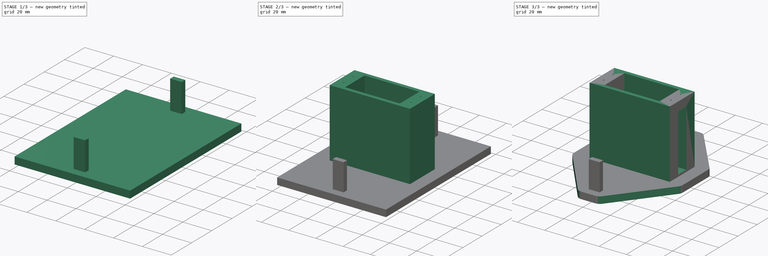
[diagram: build sequence overview — one tinted view per stage of 3, left to right]
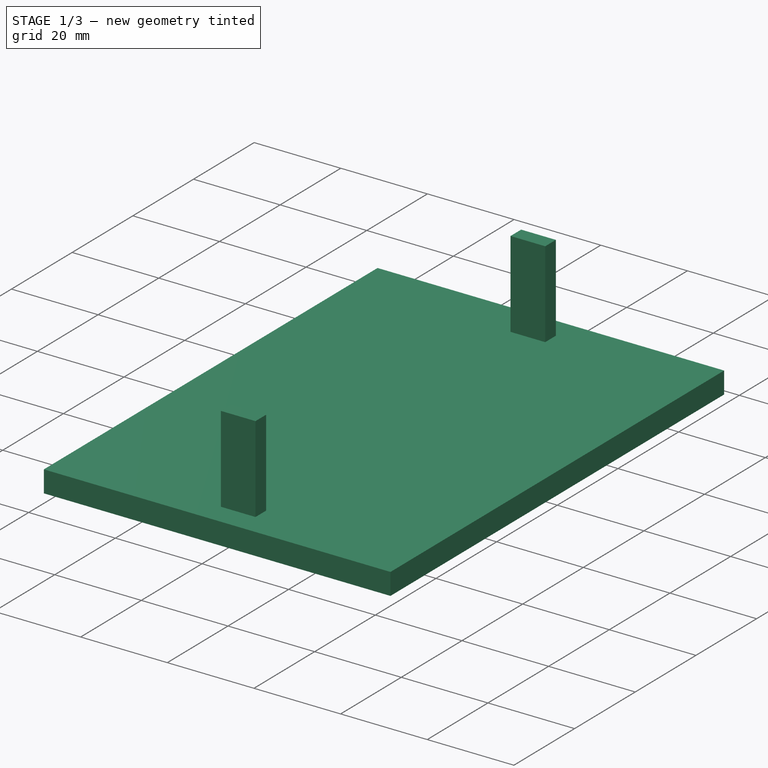
[diagram: stage 1 of 3 — iso view after this stage's code; geometry added in this stage tinted green]
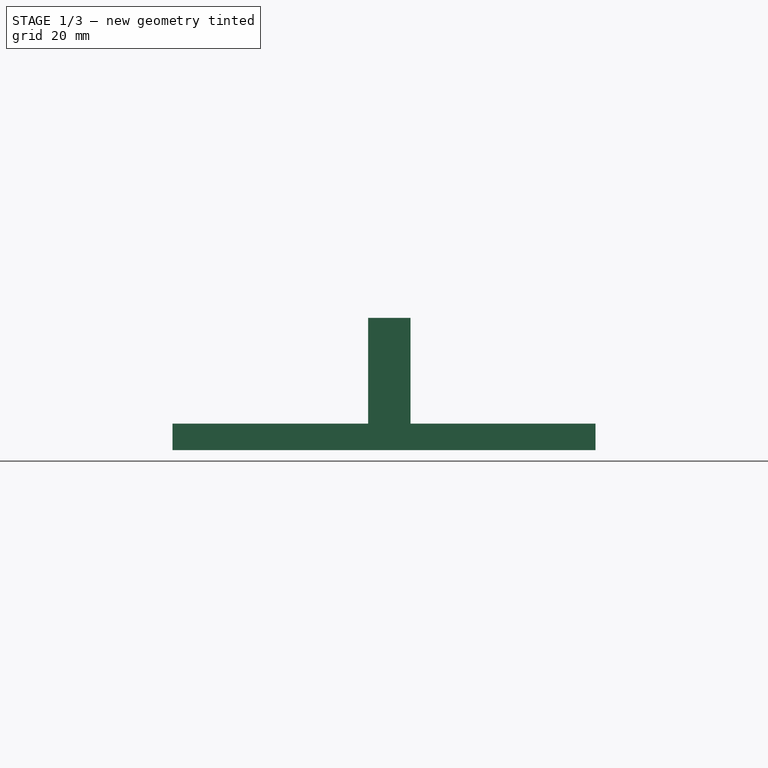
[diagram: stage 1 of 3 — front view after this stage's code; geometry added in this stage tinted green]
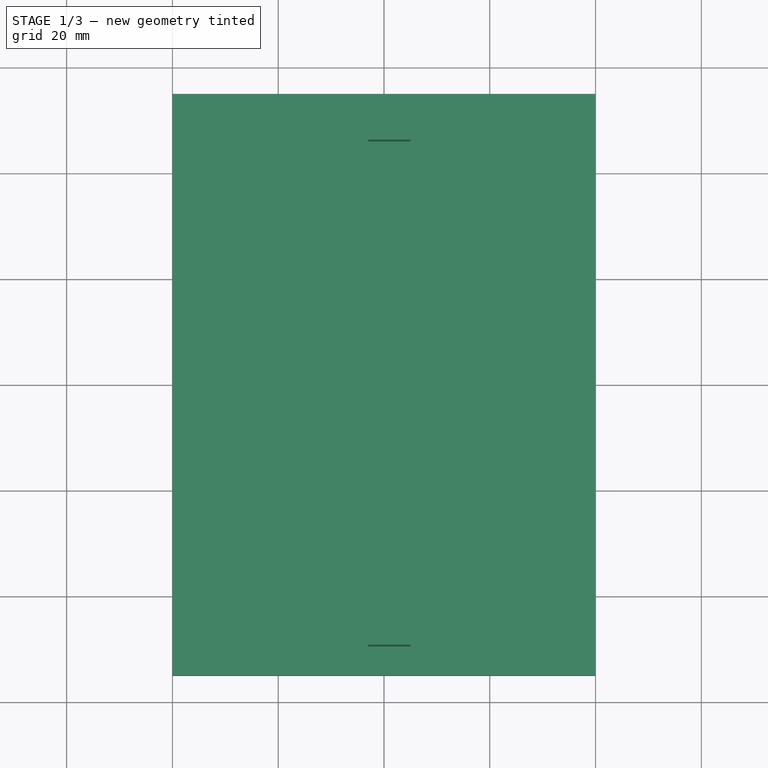
[diagram: stage 1 of 3 — top view after this stage's code; geometry added in this stage tinted green]
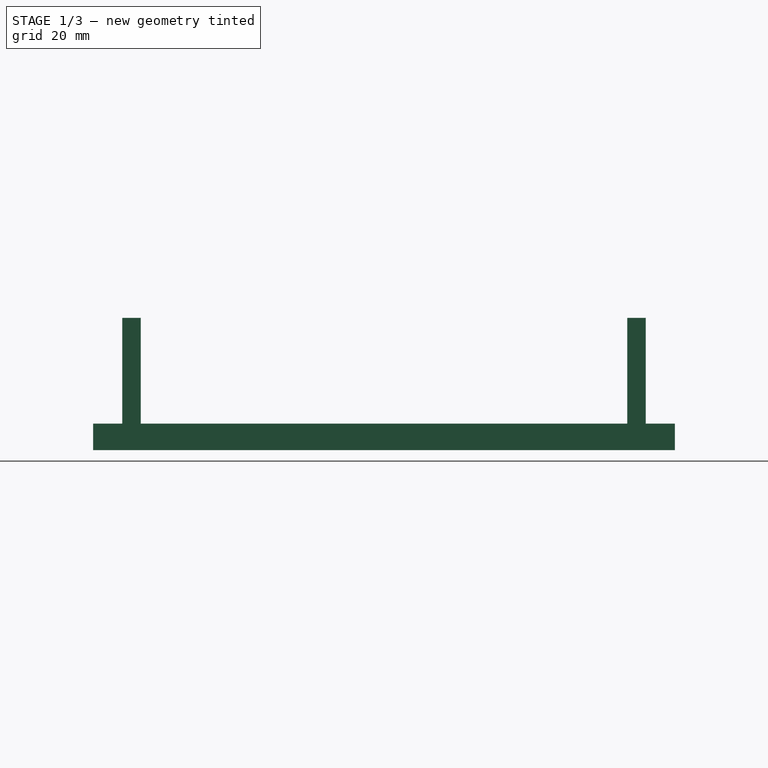
[diagram: stage 1 of 3 — right view after this stage's code; geometry added in this stage tinted green]
FCSTD DOCUMENT  (FreeCAD 0.21R33771 (Git))
Label: support_servomoteur
License: All rights reserved
LicenseURL: https://en.wikipedia.org/wiki/All_rights_reserved
objects: Sketcher::SketchObject×6, PartDesign::Pad×3, PartDesign::Pocket×3, PartDesign::Fillet×1, PartDesign::Body×1
note: 21 computed .brp shape members not serialized (recipe doc carries the construction recipe); baked Part::Feature solids carry a one-line shape summary decoded from their .brp

FEATURE [Sketcher::SketchObject] Sketch
  FullyConstrained = true
  MapMode = 5
  Support = -> [XY_Plane]
  sketch-geometry (4):
    g0: LineSegment StartX=-40 StartY=-55 StartZ=0 EndX=40 EndY=-55 EndZ=0
    g1: LineSegment StartX=40 StartY=-55 StartZ=0 EndX=40 EndY=55 EndZ=0
    g2: LineSegment StartX=40 StartY=55 StartZ=0 EndX=-40 EndY=55 EndZ=0
    g3: LineSegment StartX=-40 StartY=55 StartZ=0 EndX=-40 EndY=-55 EndZ=0
  constraints (11):
    c: Coincident(g0,g1)
    c: Coincident(g1,g2)
    c: Coincident(g2,g3)
    c: Coincident(g3,g0)
    c: Horizontal(g0)
    c: Horizontal(g2)
    c: Vertical(g1)
    c: Vertical(g3)
    c: DistanceX(g2,g2) = 80
    c: DistanceY(g1,g1) = 110
    c: Symmetric(g2,g0,g-1)
FEATURE [PartDesign::Pad] Pad
  Direction = (0,0,1)
  Length = 5
  Length2 = 10
  Profile = -> Sketch
  ReferenceAxis = -> Sketch [N_Axis]
  Type = 0
FEATURE [Sketcher::SketchObject] Sketch001
  ExternalGeometry = -> [Pad]
  FullyConstrained = true
  MapMode = 5
  Placement = pos=(0,0,5) rot=(0,0,1;0rad)
  Support = -> [Pad]
  sketch-geometry (8):
    g0: LineSegment StartX=-3 StartY=49.5 StartZ=0 EndX=5 EndY=49.5 EndZ=0
    g1: LineSegment StartX=5 StartY=49.5 StartZ=0 EndX=5 EndY=46 EndZ=0
    g2: LineSegment StartX=5 StartY=46 StartZ=0 EndX=-3 EndY=46 EndZ=0
    g3: LineSegment StartX=-3 StartY=46 StartZ=0 EndX=-3 EndY=49.5 EndZ=0
    g4: LineSegment StartX=-3 StartY=-46 StartZ=0 EndX=5 EndY=-46 EndZ=0
    g5: LineSegment StartX=5 StartY=-46 StartZ=0 EndX=5 EndY=-49.5 EndZ=0
    g6: LineSegment StartX=5 StartY=-49.5 StartZ=0 EndX=-3 EndY=-49.5 EndZ=0
    g7: LineSegment StartX=-3 StartY=-49.5 StartZ=0 EndX=-3 EndY=-46 EndZ=0
  constraints (23):
    c: Coincident(g0,g1)
    c: Coincident(g1,g2)
    c: Coincident(g2,g3)
    c: Coincident(g3,g0)
    c: Horizontal(g0)
    c: Horizontal(g2)
    c: Vertical(g1)
    c: Vertical(g3)
    c: Coincident(g4,g5)
    c: Coincident(g5,g6)
    c: Coincident(g6,g7)
    c: Coincident(g7,g4)
    c: Horizontal(g4)
    c: Horizontal(g6)
    c: Vertical(g5)
    c: Vertical(g7)
    c: Equal(g1,g5)
    c: Equal(g0,g4)
    c: Symmetric(g2,g4,g-1)
    c: DistanceX(g0,g-4) = 35
    c: DistanceX(g0,g0) = 8
    c: DistanceY(g3,g3) = 3.5
    c: DistanceY(g4,g1) = 92
FEATURE [PartDesign::Pad] Pad001
  BaseFeature = -> Pad
  Direction = (0,0,1)
  Length = 20
  Length2 = 10
  Profile = -> Sketch001
  ReferenceAxis = -> Sketch001 [N_Axis]
  Type = 0
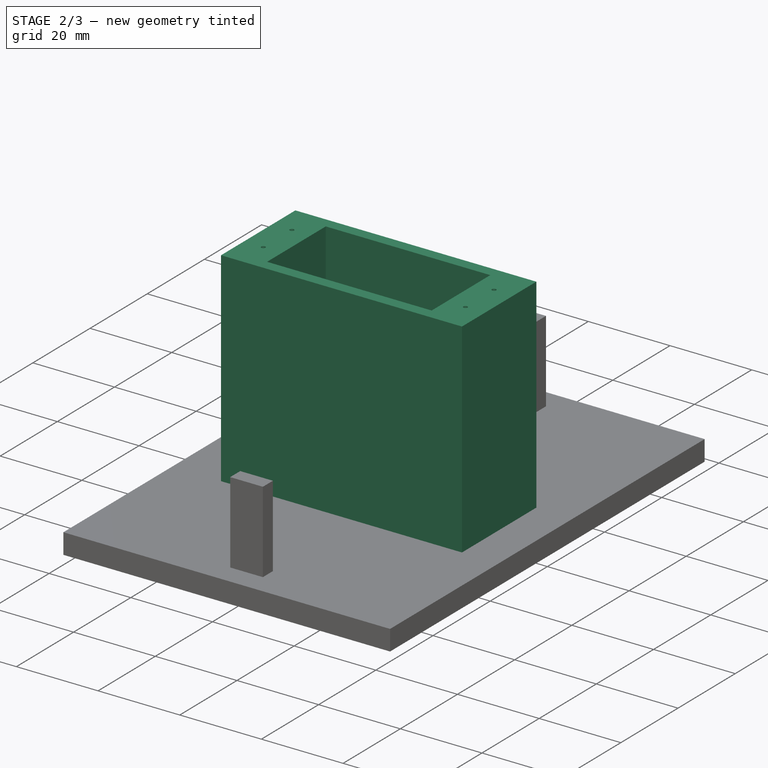
[diagram: stage 2 of 3 — iso view after this stage's code; geometry added in this stage tinted green]
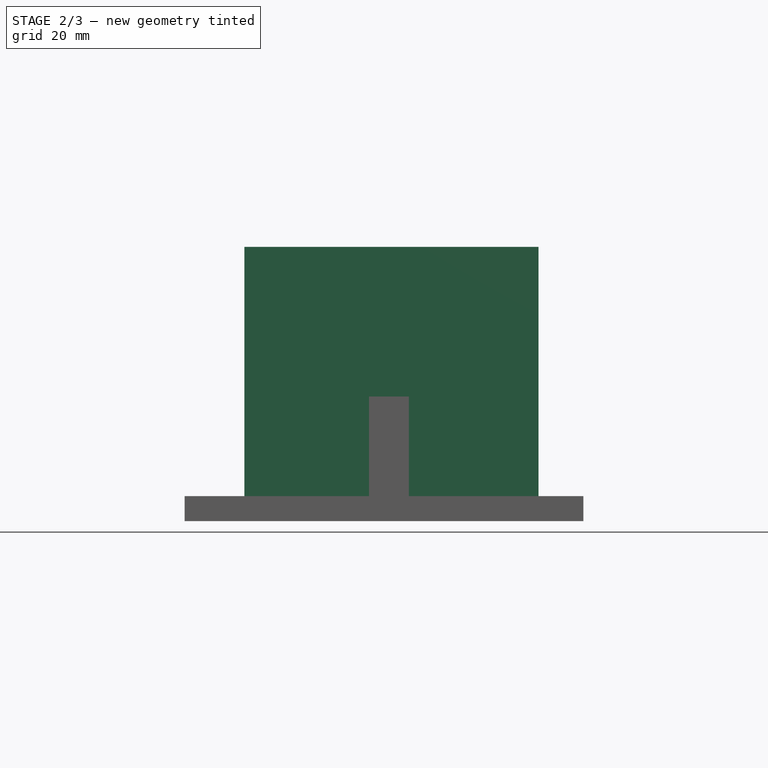
[diagram: stage 2 of 3 — front view after this stage's code; geometry added in this stage tinted green]
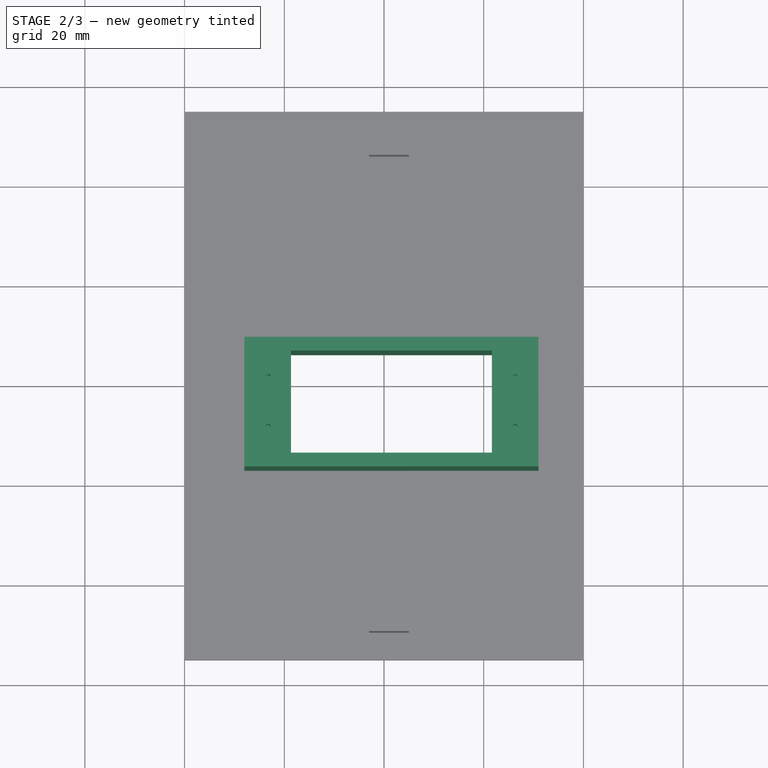
[diagram: stage 2 of 3 — top view after this stage's code; geometry added in this stage tinted green]
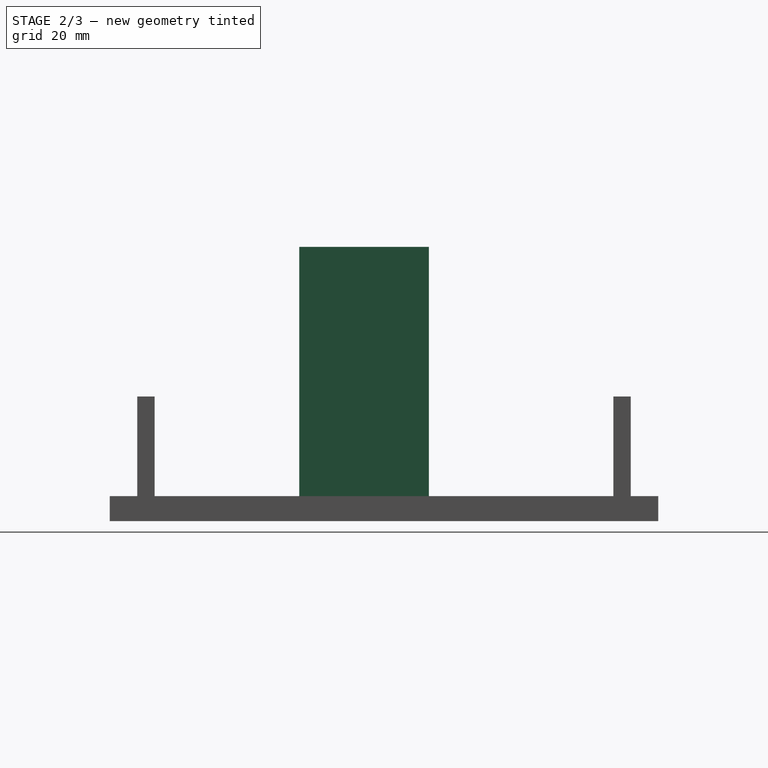
[diagram: stage 2 of 3 — right view after this stage's code; geometry added in this stage tinted green]
FEATURE [Sketcher::SketchObject] Sketch002
  ExternalGeometry = -> [Pad001]
  FullyConstrained = true
  MapMode = 5
  Placement = pos=(0,0,5) rot=(0,0,1;0rad)
  Support = -> [Pad001]
  sketch-geometry (4):
    g0: LineSegment StartX=-28 StartY=9 StartZ=0 EndX=31 EndY=9 EndZ=0
    g1: LineSegment StartX=31 StartY=9 StartZ=0 EndX=31 EndY=-17 EndZ=0
    g2: LineSegment StartX=31 StartY=-17 StartZ=0 EndX=-28 EndY=-17 EndZ=0
    g3: LineSegment StartX=-28 StartY=-17 StartZ=0 EndX=-28 EndY=9 EndZ=0
  constraints (12):
    c: Coincident(g0,g1)
    c: Coincident(g1,g2)
    c: Coincident(g2,g3)
    c: Coincident(g3,g0)
    c: Horizontal(g0)
    c: Horizontal(g2)
    c: Vertical(g1)
    c: Vertical(g3)
    c: DistanceX(g0,g0) = 59
    c: DistanceY(g1,g1) = 26
    c: DistanceY(g-1,g0) = 9
    c: DistanceX(g0,g-4) = 9
FEATURE [PartDesign::Pad] Pad002
  BaseFeature = -> Pad001
  Direction = (0,0,1)
  Length = 50
  Length2 = 10
  Profile = -> Sketch002
  ReferenceAxis = -> Sketch002 [N_Axis]
  Type = 0
FEATURE [Sketcher::SketchObject] Sketch003
  ExternalGeometry = -> [Pad002]
  FullyConstrained = true
  MapMode = 5
  Placement = pos=(0,0,0) rot=(1,0,0;3.14159rad)
  Support = -> [Pad002]
  sketch-geometry (4):
    g0: LineSegment StartX=21.65 StartY=14.25 StartZ=0 EndX=-18.65 EndY=14.25 EndZ=0
    g1: LineSegment StartX=-18.65 StartY=14.25 StartZ=0 EndX=-18.65 EndY=-6.25 EndZ=0
    g2: LineSegment StartX=-18.65 StartY=-6.25 StartZ=0 EndX=21.65 EndY=-6.25 EndZ=0
    g3: LineSegment StartX=21.65 StartY=-6.25 StartZ=0 EndX=21.65 EndY=14.25 EndZ=0
  constraints (14):
    c: Coincident(g0,g1)
    c: Coincident(g1,g2)
    c: Coincident(g2,g3)
    c: Coincident(g3,g0)
    c: Horizontal(g0)
    c: Horizontal(g2)
    c: Vertical(g1)
    c: Vertical(g3)
    c: DistanceX(g2,g2) = 40.3
    c: DistanceY(g3,g3) = 20.5
    c: DistanceY(g0,g-14) = 2.75
    c: DistanceX(g0,g-14) = 9.35
    c: DistanceY(g-14,g-14) = 26
    c: DistanceX(g-11,g-11) = 59
FEATURE [PartDesign::Pocket] Pocket
  BaseFeature = -> Pad002
  Direction = (0,0,1)
  Length = 50
  Length2 = 5
  Profile = -> Sketch003
  ReferenceAxis = -> Sketch003 [N_Axis]
  Type = 1
FEATURE [Sketcher::SketchObject] Sketch004
  ExternalGeometry = -> [Pocket]
  FullyConstrained = true
  MapMode = 5
  Placement = pos=(0,0,55) rot=(0,0,1;0rad)
  Support = -> [Pocket]
  sketch-geometry (8):
    g0: Circle CenterX=-23.25 CenterY=1 CenterZ=0 NormalX=0 NormalY=0 NormalZ=1 AngleXU=0 Radius=0.5
    g1: Circle CenterX=-23.25 CenterY=-9 CenterZ=0 NormalX=0 NormalY=0 NormalZ=1 AngleXU=0 Radius=0.5
    g2: Circle CenterX=26.25 CenterY=-9 CenterZ=0 NormalX=0 NormalY=0 NormalZ=1 AngleXU=0 Radius=0.5
    g3: Circle CenterX=26.25 CenterY=1 CenterZ=0 NormalX=0 NormalY=0 NormalZ=1 AngleXU=0 Radius=0.5
    g4: LineSegment StartX=26.25 StartY=1 StartZ=0 EndX=21.65 EndY=1 EndZ=0
    g5: LineSegment StartX=-23.25 StartY=1 StartZ=0 EndX=-18.65 EndY=1 EndZ=0
    g6: LineSegment StartX=26.25 StartY=1 StartZ=0 EndX=21.65 EndY=6.25 EndZ=0
    g7: LineSegment StartX=26.25 StartY=-9 StartZ=0 EndX=21.65 EndY=-14.25 EndZ=0
  constraints (22):
    c: Vertical(g3,g2)
    c: Vertical(g0,g1)
    c: Horizontal(g0,g3)
    c: Horizontal(g1,g2)
    c: Equal(g3,g2)
    c: Equal(g3,g0)
    c: Equal(g3,g1)
    c: Diameter(g3) = 1
    c: DistanceX(g0,g3) = 49.5
    c: DistanceY(g1,g0) = 10
    c: Coincident(g4,g3)
    c: PointOnObject(g4,g-5)
    c: Horizontal(g4)
    c: Coincident(g5,g0)
    c: PointOnObject(g5,g-3)
    c: Horizontal(g5)
    c: Equal(g5,g4)
    c: Coincident(g6,g3)
    c: Coincident(g6,g-5)
    c: Coincident(g7,g2)
    c: Coincident(g7,g-6)
    c: Equal(g6,g7)
FEATURE [PartDesign::Pocket] Pocket001
  BaseFeature = -> Pocket
  Direction = (0,0,-1)
  Length = 10
  Length2 = 5
  Profile = -> Sketch004
  ReferenceAxis = -> Sketch004 [N_Axis]
  Type = 0
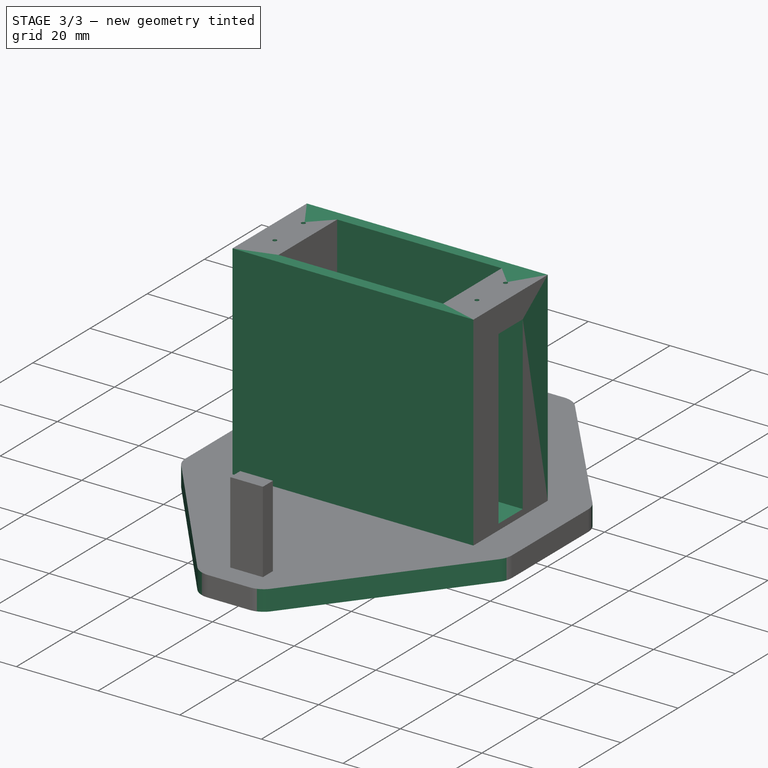
[diagram: stage 3 of 3 — iso view after this stage's code; geometry added in this stage tinted green]
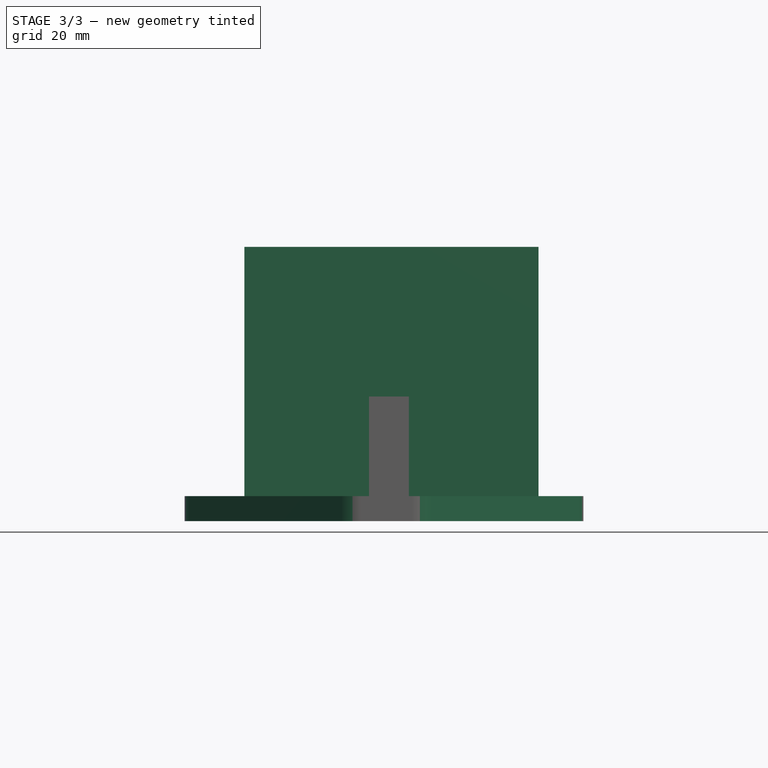
[diagram: stage 3 of 3 — front view after this stage's code; geometry added in this stage tinted green]
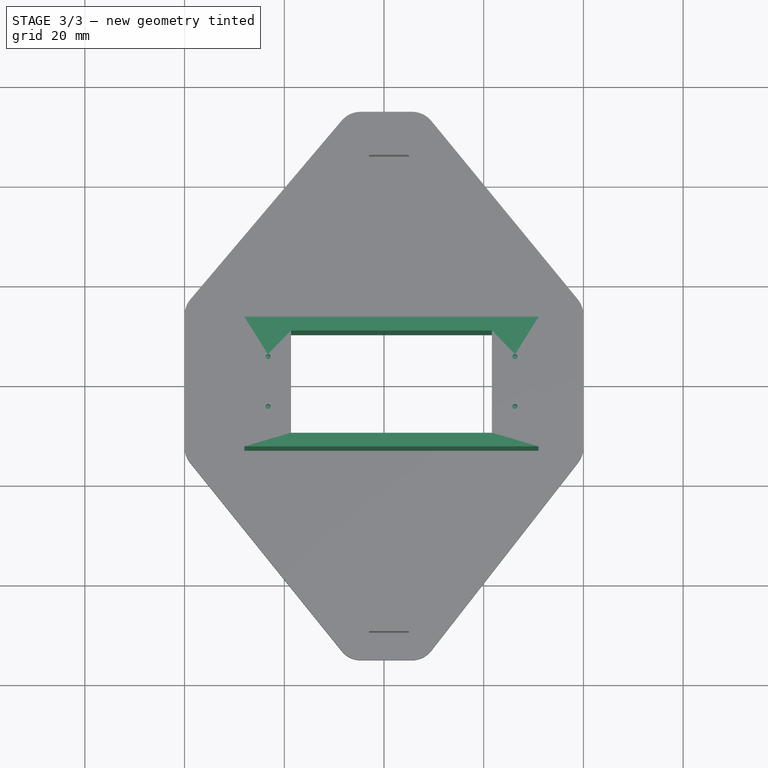
[diagram: stage 3 of 3 — top view after this stage's code; geometry added in this stage tinted green]
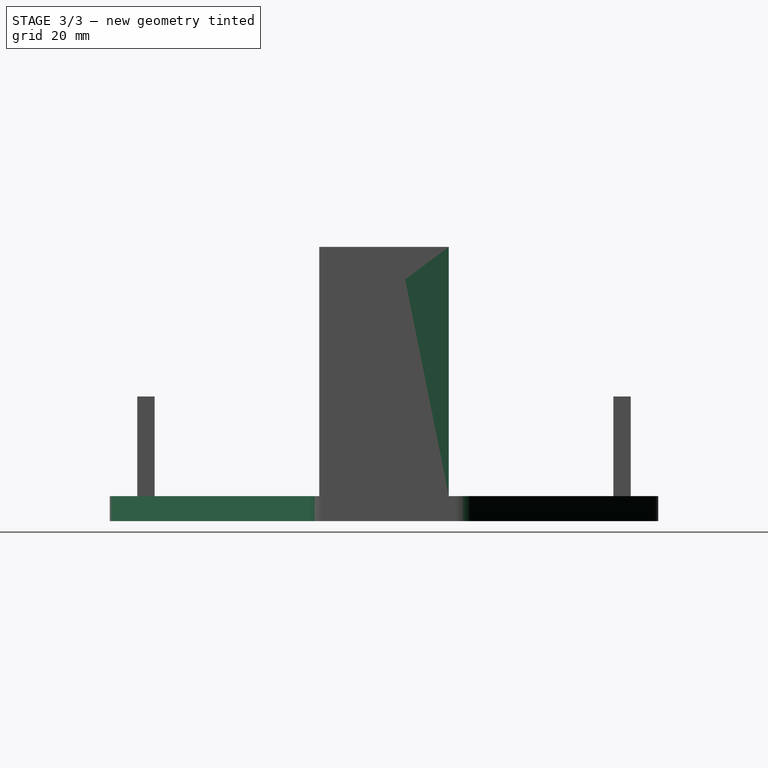
[diagram: stage 3 of 3 — right view after this stage's code; geometry added in this stage tinted green]
FEATURE [Sketcher::SketchObject] Sketch006
  FullyConstrained = false
  MapMode = 5
  Placement = pos=(0,0,5) rot=(0,0,1;0rad)
  sketch-geometry (12):
    g0: LineSegment StartX=-40 StartY=16 StartZ=0 EndX=-7 EndY=34.5 EndZ=0
    g1: LineSegment StartX=8 StartY=34.5 StartZ=0 EndX=40 EndY=16 EndZ=0
    g2: LineSegment StartX=40 StartY=-14 StartZ=0 EndX=8 EndY=-55 EndZ=0
    g3: LineSegment StartX=-7 StartY=-55 StartZ=0 EndX=-40 EndY=-14 EndZ=0
    g4: LineSegment StartX=-40 StartY=16 StartZ=0 EndX=-40 EndY=55 EndZ=0
    g5: LineSegment StartX=-40 StartY=55 StartZ=0 EndX=-7 EndY=55 EndZ=0
    g6: LineSegment StartX=8 StartY=34.5 StartZ=0 EndX=40 EndY=55 EndZ=0
    g7: LineSegment StartX=40 StartY=16 StartZ=0 EndX=40 EndY=55 EndZ=0
    g8: LineSegment StartX=40 StartY=-14 StartZ=0 EndX=40 EndY=-55 EndZ=0
    g9: LineSegment StartX=40 StartY=-55 StartZ=0 EndX=8 EndY=-55 EndZ=0
    g10: LineSegment StartX=-7 StartY=-55 StartZ=0 EndX=-40 EndY=-55 EndZ=0
    g11: LineSegment StartX=-40 StartY=-14 StartZ=0 EndX=-40 EndY=-55 EndZ=0
  constraints (14):
    c: DistanceY(g2,g1) = 30
    c: DistanceX(g0,g1) = 15
    c: Vertical(g0,g3)
    c: Vertical(g1,g2)
    c: Horizontal(g1,g0)
    c: Horizontal(g2,g3)
    c: Coincident(g4,g0)
    c: Coincident(g5,g4)
    c: Coincident(g6,g1)
    c: Coincident(g7,g1)
    c: Coincident(g8,g2)
    c: Coincident(g9,g8)
    c: Coincident(g10,g3)
    c: Coincident(g11,g3)
FEATURE [PartDesign::Pocket] Pocket003
  BaseFeature = -> Pocket001
  Direction = (0,0,-1)
  Length = 5
  Length2 = 5
  Profile = -> Sketch006
  ReferenceAxis = -> Sketch006 [N_Axis]
  Type = 1
FEATURE [PartDesign::Fillet] Fillet
  Base = -> Pocket003 [Edge40,Edge39,Edge17,Edge2,Edge4,Edge36,Edge37,Edge38]
  BaseFeature = -> Pocket003
  Radius = 5
  SupportTransform = false
  UseAllEdges = false
FEATURE [PartDesign::Body] Body  label="Corps"
  Group = -> [Sketch,Pad,Sketch001,Pad001,Sketch002,Pad002,Sketch003,Pocket,Sketch004,Pocket001,Sketch006,Pocket003,Fillet]
  Origin = -> Origin
  Tip = -> Fillet
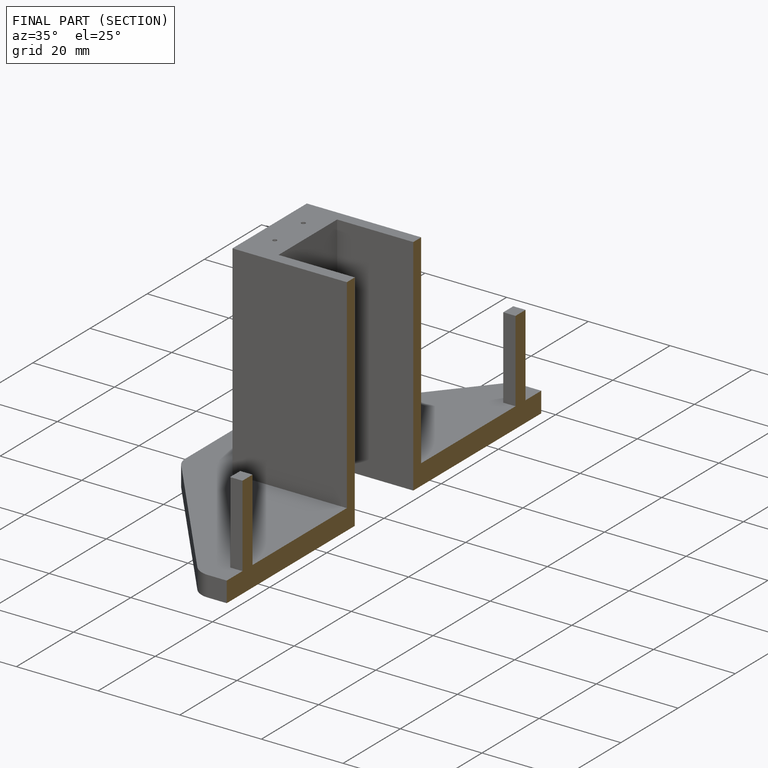
[diagram: finished part — half-section view (interior)]
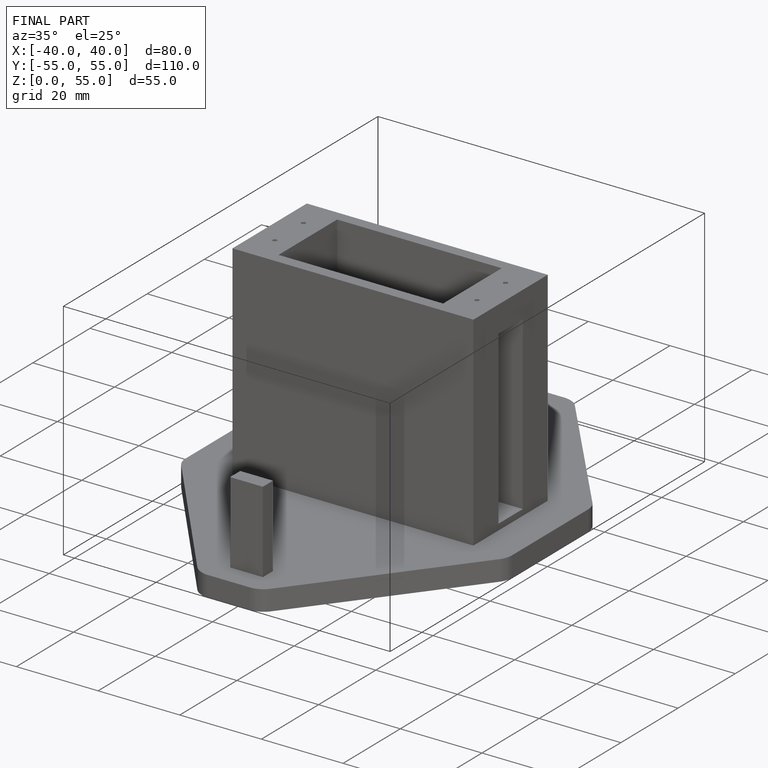
[diagram: finished part — iso view with bounding-box wireframe]
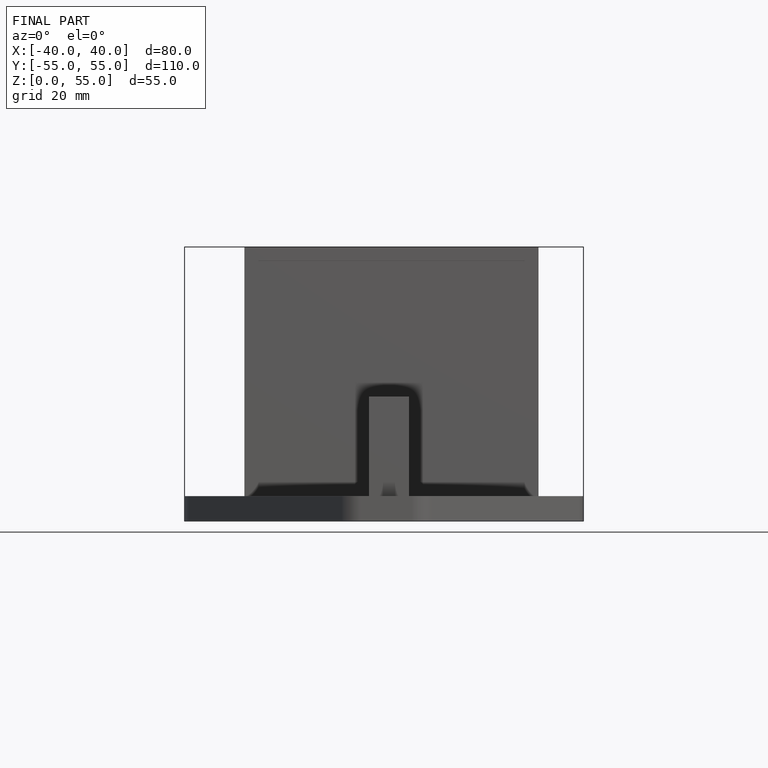
[diagram: finished part — front view with bounding-box wireframe]
